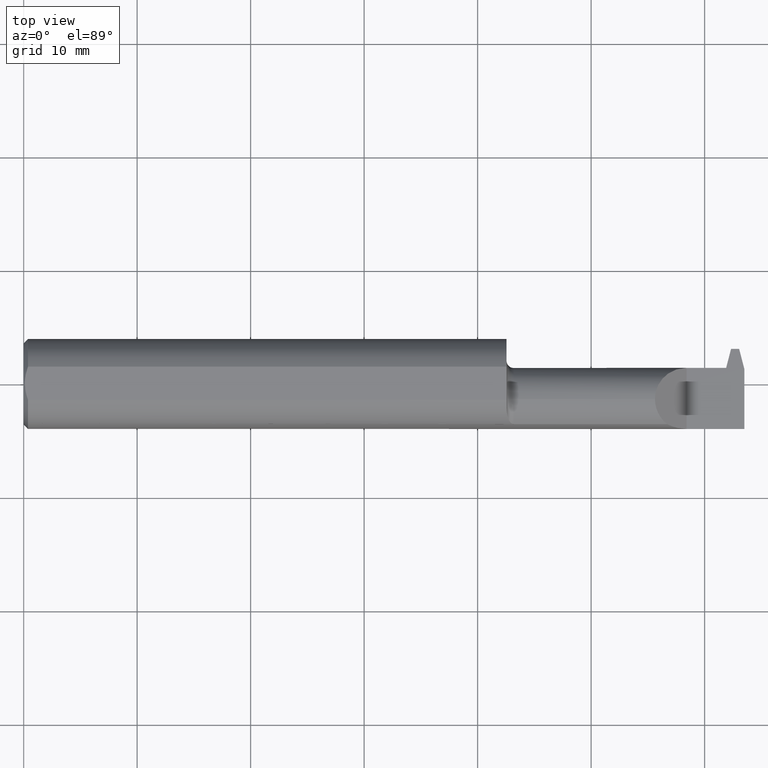
[diagram: clean part render]
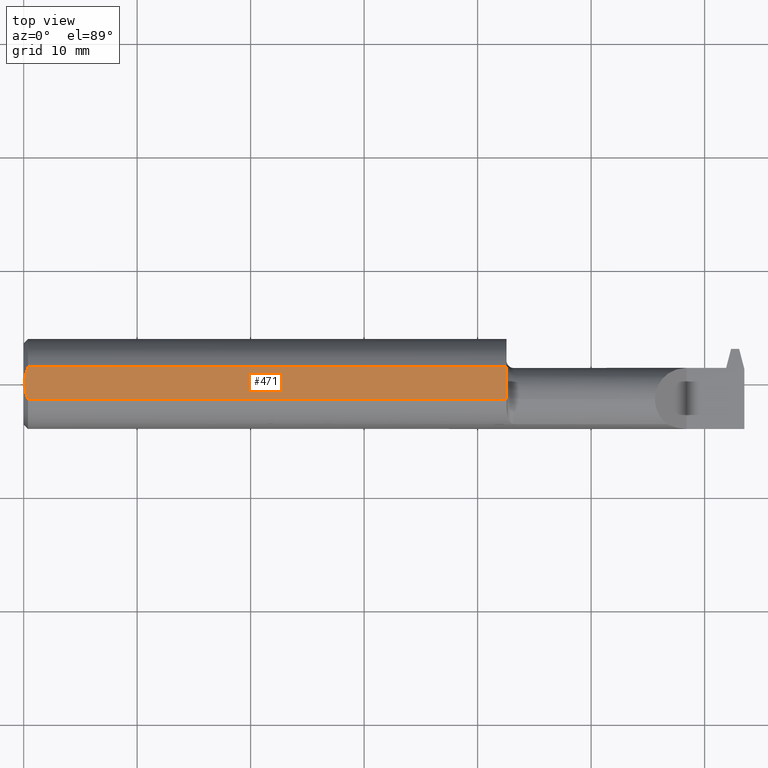
[diagram: same view with one face highlighted and labeled with its STEP entity id]
A machine part, top view. The second image highlights one B-rep face of the part: STEP entity #471.
In plain terms, the highlighted planar face has unit normal (-0, 0, -1).
Its self-contained STEP definition (entity closure, byte-faithful):
#32 = ORIENTED_EDGE ( 'NONE', *, *, #335, .T. ) ;
#35 = VECTOR ( 'NONE', #56, 39.37007874015748143 ) ;
#39 = ORIENTED_EDGE ( 'NONE', *, *, #717, .T. ) ;
#51 = LINE ( 'NONE', #404, #175 ) ;
#56 = DIRECTION ( 'NONE',  ( 1.000000000000000000, 0.000000000000000000, 0.000000000000000000 ) ) ;
#63 = CARTESIAN_POINT ( 'NONE',  ( 0.01499999999999970107, -0.05756040305626777126, 0.1450999999999999790 ) ) ;
#100 = CARTESIAN_POINT ( 'NONE',  ( 0.008799784310863792772, 0.03878477980766483618, 0.1451000000000000068 ) ) ;
#135 = CARTESIAN_POINT ( 'NONE',  ( 0.003999999999999595893, 1.377970445471898428E-17, 0.1450999999999999790 ) ) ;
#173 = CARTESIAN_POINT ( 'NONE',  ( 0.01157928343552837129, 0.04828364633877424428, 0.1451000000000000068 ) ) ;
#175 = VECTOR ( 'NONE', #338, 39.37007874015748143 ) ;
#183 = CARTESIAN_POINT ( 'NONE',  ( 1.675000000000000044, 0.05756040305626777126, 0.1450999999999999790 ) ) ;
#192 = CARTESIAN_POINT ( 'NONE',  ( 0.003999999999996986001, -0.009882491626910055310, 0.1450999999999999790 ) ) ;
#215 = EDGE_CURVE ( 'NONE', #695, #314, #853, .T. ) ;
#233 = AXIS2_PLACEMENT_3D ( 'NONE', #502, #510, #644 ) ;
#274 = B_SPLINE_CURVE_WITH_KNOTS ( 'NONE', 3,
 ( #135, #192, #762, #540, #828, #63 ),
 .UNSPECIFIED., .F., .F.,
 ( 4, 2, 4 ),
 ( 0.004431269906162800011, 0.005173847132308577804, 0.005916424358454355596 ),
 .UNSPECIFIED. ) ;
#295 = PLANE ( 'NONE',  #233 ) ;
#314 = VERTEX_POINT ( 'NONE', #768 ) ;
#326 = ORIENTED_EDGE ( 'NONE', *, *, #215, .F. ) ;
#335 = EDGE_CURVE ( 'NONE', #622, #336, #274, .T. ) ;
#336 = VERTEX_POINT ( 'NONE', #347 ) ;
#338 = DIRECTION ( 'NONE',  ( -1.000000000000000000, -0.000000000000000000, -0.000000000000000000 ) ) ;
#347 = CARTESIAN_POINT ( 'NONE',  ( 0.01499999999999970107, -0.05756040305626777126, 0.1450999999999999790 ) ) ;
#388 = EDGE_CURVE ( 'NONE', #454, #695, #846, .T. ) ;
#404 = CARTESIAN_POINT ( 'NONE',  ( 2.500000000000000000, -0.05756040305626777126, 0.1450999999999999790 ) ) ;
#409 = EDGE_CURVE ( 'NONE', #314, #336, #51, .T. ) ;
#420 = CARTESIAN_POINT ( 'NONE',  ( 0.01499999999999970281, 0.05756040305626777126, 0.1450999999999999790 ) ) ;
#431 = VECTOR ( 'NONE', #568, 39.37007874015748143 ) ;
#454 = VERTEX_POINT ( 'NONE', #420 ) ;
#471 = ADVANCED_FACE ( 'NONE', ( #793 ), #295, .F. ) ;
#502 = CARTESIAN_POINT ( 'NONE',  ( 0.000000000000000000, 0.1000000000000000056, 0.1450999999999999790 ) ) ;
#510 = DIRECTION ( 'NONE',  ( -0.000000000000000000, 0.000000000000000000, -1.000000000000000000 ) ) ;
#517 = ORIENTED_EDGE ( 'NONE', *, *, #388, .F. ) ;
#540 = CARTESIAN_POINT ( 'NONE',  ( 0.008847869984959717479, -0.03896939155709343294, 0.1450999999999999512 ) ) ;
#553 = EDGE_LOOP ( 'NONE', ( #326, #517, #39, #32, #699 ) ) ;
#568 = DIRECTION ( 'NONE',  ( 0.000000000000000000, -1.000000000000000000, 0.000000000000000000 ) ) ;
#608 = CARTESIAN_POINT ( 'NONE',  ( 0.003999999999997044114, 0.009886684785571414960, 0.1450999999999999512 ) ) ;
#622 = VERTEX_POINT ( 'NONE', #890 ) ;
#644 = DIRECTION ( 'NONE',  ( -1.000000000000000000, 0.000000000000000000, 0.000000000000000000 ) ) ;
#679 = CARTESIAN_POINT ( 'NONE',  ( 2.500000000000000000, 0.05756040305626777126, 0.1450999999999999790 ) ) ;
#695 = VERTEX_POINT ( 'NONE', #183 ) ;
#699 = ORIENTED_EDGE ( 'NONE', *, *, #409, .F. ) ;
#717 = EDGE_CURVE ( 'NONE', #454, #622, #899, .T. ) ;
#762 = CARTESIAN_POINT ( 'NONE',  ( 0.005042865002153306721, -0.01979865541750971611, 0.1451000000000000068 ) ) ;
#768 = CARTESIAN_POINT ( 'NONE',  ( 1.675000000000000044, -0.05756040305626777820, 0.1450999999999999790 ) ) ;
#790 = CARTESIAN_POINT ( 'NONE',  ( 1.675000000000000044, 0.1000000000000000056, 0.1450999999999999790 ) ) ;
#793 = FACE_OUTER_BOUND ( 'NONE', #553, .T. ) ;
#809 = CARTESIAN_POINT ( 'NONE',  ( 0.01499999999999970281, 0.05756040305626777126, 0.1450999999999999790 ) ) ;
#828 = CARTESIAN_POINT ( 'NONE',  ( 0.01160171645209438947, -0.04834448319362431162, 0.1450999999999999790 ) ) ;
#833 = CARTESIAN_POINT ( 'NONE',  ( 0.005017455651907636906, 0.01961184984831247299, 0.1450999999999999790 ) ) ;
#846 = LINE ( 'NONE', #679, #35 ) ;
#853 = LINE ( 'NONE', #790, #431 ) ;
#890 = CARTESIAN_POINT ( 'NONE',  ( 0.003999999999999595893, 1.377970445471898428E-17, 0.1450999999999999790 ) ) ;
#899 = B_SPLINE_CURVE_WITH_KNOTS ( 'NONE', 3,
 ( #809, #173, #100, #833, #608, #908 ),
 .UNSPECIFIED., .F., .F.,
 ( 4, 2, 4 ),
 ( 0.002945485300212740808, 0.003688377603187770627, 0.004431269906162800011 ),
 .UNSPECIFIED. ) ;
#908 = CARTESIAN_POINT ( 'NONE',  ( 0.003999999999999595893, 1.377970445471898428E-17, 0.1450999999999999790 ) ) ;